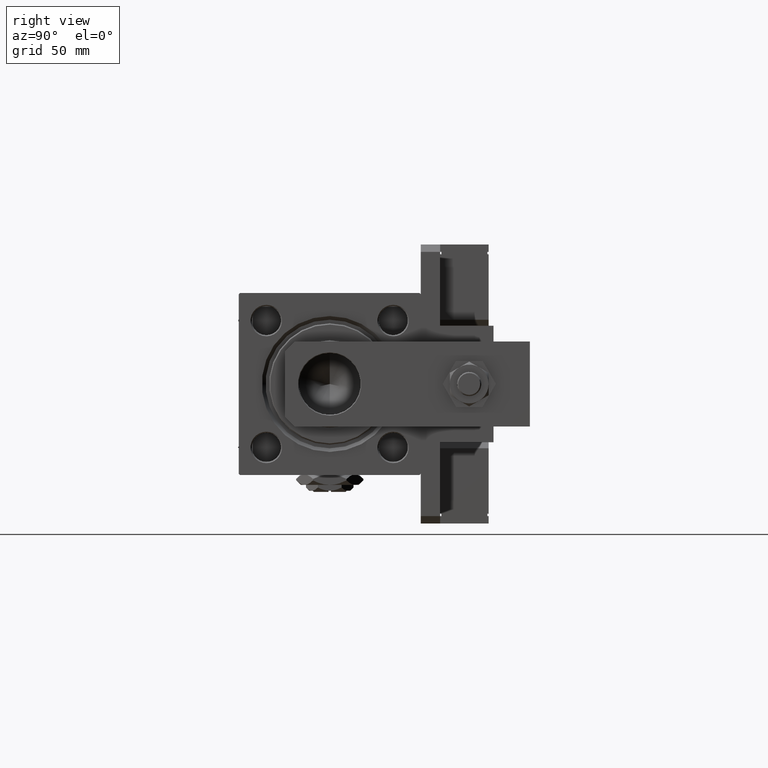
[diagram: clean part render]
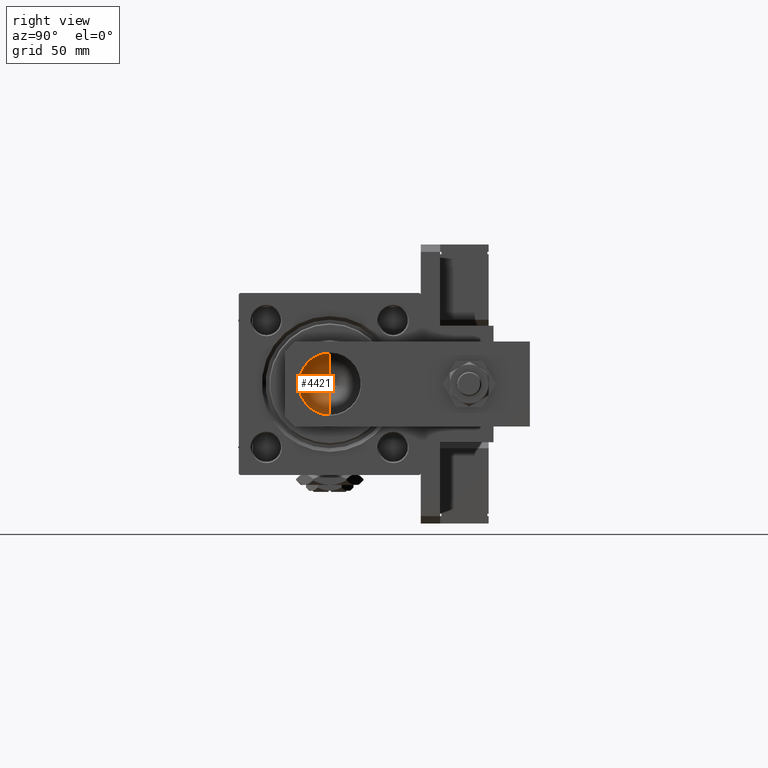
[diagram: same view with one face highlighted and labeled with its STEP entity id]
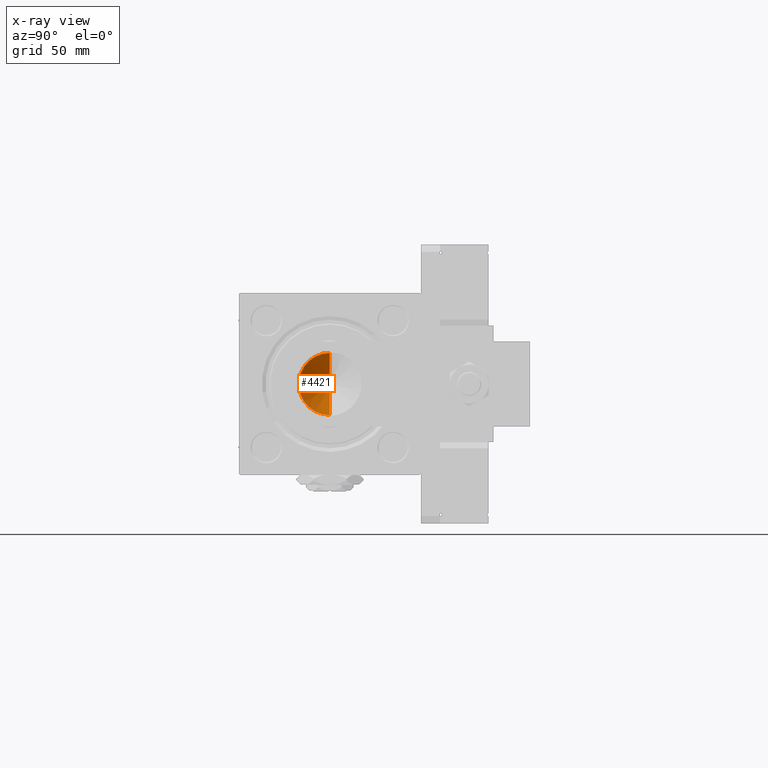
[diagram: x-ray of the same camera — body ghosted, the highlighted face saturated]
A machine part, right view. The second image highlights one B-rep face of the part: STEP entity #4421.
The next image is the same camera in x-ray: the body ghosted, the highlighted face saturated — about 0% of this face is hidden behind the body in this view.
In plain terms, the highlighted conical surface has half-angle 59 deg.
Its self-contained STEP definition (entity closure, byte-faithful):
#1279 = CARTESIAN_POINT ( 'NONE',  ( -1.323906893019387300E-14, 0.000000000000000000, 119.3390271073986213 ) ) ;
#3546 = EDGE_CURVE ( 'NONE', #31381, #5997, #50841, .T. ) ;
#4421 = ADVANCED_FACE ( 'NONE', ( #6659 ), #52096, .F. ) ;
#5997 = VERTEX_POINT ( 'NONE', #23924 ) ;
#6659 = FACE_OUTER_BOUND ( 'NONE', #52512, .T. ) ;
#6947 = CARTESIAN_POINT ( 'NONE',  ( 0.000000000000000000, 0.000000000000000000, 127.0000000000000000 ) ) ;
#11985 = VECTOR ( 'NONE', #37666, 1000.000000000000000 ) ;
#14585 = DIRECTION ( 'NONE',  ( 1.000000000000000000, 0.000000000000000000, 0.000000000000000000 ) ) ;
#14985 = AXIS2_PLACEMENT_3D ( 'NONE', #56843, #16682, #14585 ) ;
#16682 = DIRECTION ( 'NONE',  ( -0.000000000000000000, -0.000000000000000000, 1.000000000000000000 ) ) ;
#16877 = CIRCLE ( 'NONE', #14985, 12.74999999999999112 ) ;
#18406 = AXIS2_PLACEMENT_3D ( 'NONE', #6947, #20420, #42443 ) ;
#19492 = CARTESIAN_POINT ( 'NONE',  ( 12.74999999999999112, 0.000000000000000000, 127.0000000000000000 ) ) ;
#19766 = CARTESIAN_POINT ( 'NONE',  ( -12.74999999999999112, 1.561424668912874125E-15, 127.0000000000000000 ) ) ;
#19779 = VERTEX_POINT ( 'NONE', #33571 ) ;
#20420 = DIRECTION ( 'NONE',  ( -0.000000000000000000, -0.000000000000000000, 1.000000000000000000 ) ) ;
#23924 = CARTESIAN_POINT ( 'NONE',  ( -12.74999999999999112, 1.561424668912874125E-15, 127.0000000000000000 ) ) ;
#25504 = ORIENTED_EDGE ( 'NONE', *, *, #3546, .F. ) ;
#29174 = ORIENTED_EDGE ( 'NONE', *, *, #29572, .T. ) ;
#29266 = VECTOR ( 'NONE', #32094, 1000.000000000000000 ) ;
#29572 = EDGE_CURVE ( 'NONE', #19779, #5997, #16877, .T. ) ;
#31381 = VERTEX_POINT ( 'NONE', #1279 ) ;
#32094 = DIRECTION ( 'NONE',  ( 0.8571673007021122226, 0.000000000000000000, 0.5150380749100542666 ) ) ;
#33571 = CARTESIAN_POINT ( 'NONE',  ( 12.74999999999999112, 0.000000000000000000, 127.0000000000000000 ) ) ;
#34616 = EDGE_CURVE ( 'NONE', #31381, #19779, #46187, .T. ) ;
#37666 = DIRECTION ( 'NONE',  ( -0.8571673007021122226, 1.049727191138618572E-16, 0.5150380749100542666 ) ) ;
#42443 = DIRECTION ( 'NONE',  ( 1.000000000000000000, 0.000000000000000000, 0.000000000000000000 ) ) ;
#46187 = LINE ( 'NONE', #19492, #29266 ) ;
#50841 = LINE ( 'NONE', #19766, #11985 ) ;
#52096 = CONICAL_SURFACE ( 'NONE', #18406, 12.74999999999999112, 1.029744258676654312 ) ;
#52512 = EDGE_LOOP ( 'NONE', ( #25504, #54679, #29174 ) ) ;
#54679 = ORIENTED_EDGE ( 'NONE', *, *, #34616, .T. ) ;
#56843 = CARTESIAN_POINT ( 'NONE',  ( 0.000000000000000000, 0.000000000000000000, 127.0000000000000000 ) ) ;